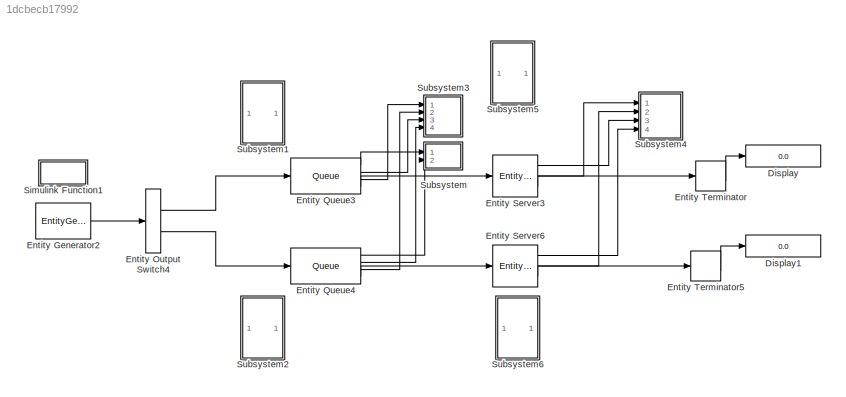
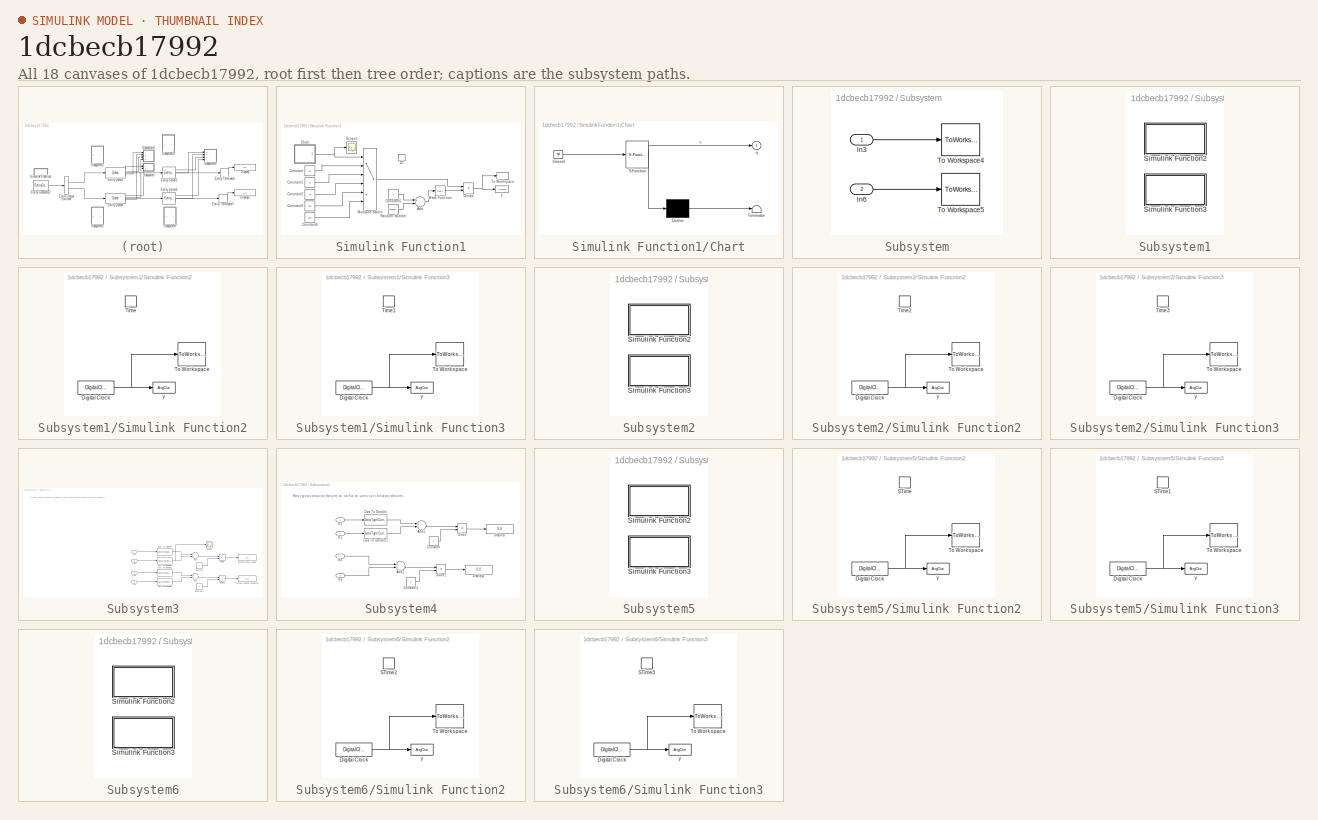
[diagram: thumbnail index - all 18 canvases of the model, root first then tree order]
MODEL slx_1dcbecb17992
KIND model
CONFIG AbsTol = auto
CONFIG EnableMultiTasking = off
CONFIG FixedStep = auto
CONFIG MaxStep = auto
CONFIG MinStep = auto
CONFIG RelTol = 1e-3
CONFIG SampleTimeConstraint = Unconstrained
CONFIG Solver = VariableStepAuto
CONFIG SolverName = VariableStepAuto
CONFIG StartTime = 0.0
CONFIG StopTime = 10.0
BLOCK [Display] Display
  Decimation = 1
  Format = bank
  Ports = [1]
BLOCK [Display] Display1
  Decimation = 1
  Format = bank
  Ports = [1]
BLOCK [EntityGenerator] Entity Generator2
  EntityType = Structured
  EntityTypeName = Entity
  IntergenerationTimeAction = dt=DT();
  OutputPortMap = o3
  OutputPortMessageModes = m
  Ports = [0, 1]
  TimeSource = MATLAB action
BLOCK [EntityOutputSwitch] Entity Output Switch4
  InputPortMap = u1
  InputPortMessageModes = m
  OutputPortMap = o0,o1
  OutputPortMessageModes = m,m
  Ports = [1, 2]
  SwitchAttributeName = Attribute1
  SwitchingCriterion = Equiprobable
BLOCK [Queue] Entity Queue3
  AverageQueueLength = on
  AverageWait = on
  Capacity = inf
  EntryAction = Time();
  ExitAction = Time1();
  InputPortMap = u0
  InputPortMessageModes = m
  NumberEntitiesInBlock = on
  OutputPortMap = o1,o2,o3,o5
  OutputPortMessageModes = n,n,n,m
  Ports = [1, 4]
BLOCK [Queue] Entity Queue4
  AverageQueueLength = on
  AverageWait = on
  Capacity = inf
  EntryAction = Time2();
  ExitAction = Time3();
  InputPortMap = u0
  InputPortMessageModes = m
  NumberEntitiesInBlock = on
  OutputPortMap = o1,o2,o3,o5
  OutputPortMessageModes = n,n,n,m
  Ports = [1, 4]
BLOCK [EntityServer] Entity Server3
  AverageWait = on
  Capacity = 1
  EntryAction = STime();
  ExitAction = STime1();
  InputPortMap = u2
  InputPortMessageModes = m
  OutputPortMap = o4,o5,o9
  OutputPortMessageModes = n,n,m
  Ports = [1, 3]
  ServiceTimeAction = persistent rngInit;\nif isempty(rngInit)\n    seed = 12345;\n    rng(seed);\n    rngInit = true;\nend\n\n% Pattern: Gaussian (normal) distribution\n% m: Mean, d: Standard deviation\nm = 3; d = 4.5;\ndt =120 + m + d * randn;
  ServiceTimeSource = MATLAB action
  Utilization = on
BLOCK [EntityServer] Entity Server6
  AverageWait = on
  Capacity = 1
  EntryAction = STime2();
  ExitAction = STime3();
  InputPortMap = u2
  InputPortMessageModes = m
  OutputPortMap = o4,o5,o9
  OutputPortMessageModes = n,n,m
  Ports = [1, 3]
  ServiceTimeAction = % Pattern: Gaussian (normal) distribution\n% m: Mean, d: Standard deviation\nm = 3; d = 4.5;\ndt =120 + m + d * randn;
  ServiceTimeSource = MATLAB action
  Utilization = on
BLOCK [EntityTerminator] Entity Terminator
  InputPortMap = u0
  InputPortMessageModes = m
  NumberEntitiesArrived = on
  OutputPortMap = o0
  Ports = [1, 1]
BLOCK [EntityTerminator] Entity Terminator5
  InputPortMap = u0
  InputPortMessageModes = m
  NumberEntitiesArrived = on
  OutputPortMap = o0
  Ports = [1, 1]
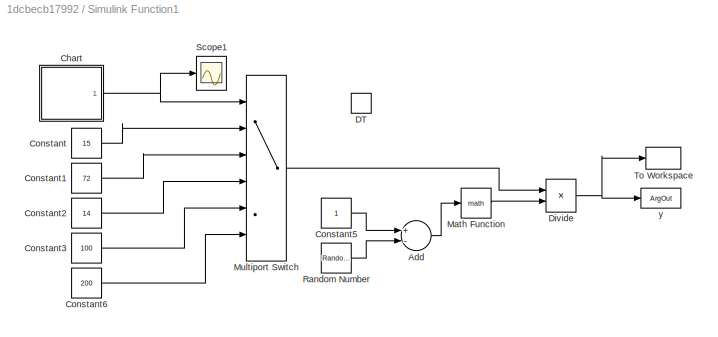
BLOCK [SubSystem] Simulink Function1
  Ports = [0, 0, 0, 1]
  RequestExecContextInheritance = off
  TreatAsAtomicUnit = on
BLOCK [Sum] Simulink Function1/Add
  InputSameDT = off
  Inputs = +-
  OutDataTypeStr = Inherit: Inherit via internal rule
  Ports = [2, 1]
  SaturateOnIntegerOverflow = off
BLOCK [SubSystem] Simulink Function1/Chart
  BlockKeywords = __PRM__SERIALIZED__DATA__:Stateflow Chart,Stateflow Diagram
  ErrorFcn = Stateflow.Translate.translate
  PermitHierarchicalResolution = ExplicitOnly
  Ports = [0, 1]
  RequestExecContextInheritance = off
  SFBlockType = Chart
  TreatAsAtomicUnit = on
BLOCK [Demux] Simulink Function1/Chart/ Demux 
  Outputs = 1
  Ports = [1, 1]
BLOCK [Ground] Simulink Function1/Chart/ Ground 
BLOCK [S-Function] Simulink Function1/Chart/ SFunction 
  EnableBusSupport = on
  FunctionName = sf_sfun
  PortCounts = [1 2]
  Ports = [1, 2]
  SFcnIsStateOwnerBlock = off
  SFunctionDeploymentMode = off
  Tag = Stateflow S-Function 3
BLOCK [Terminator] Simulink Function1/Chart/ Terminator 
BLOCK [Outport] Simulink Function1/Chart/q
  IconDisplay = Port number
BLOCK [Constant] Simulink Function1/Constant
  Value = 15
BLOCK [Constant] Simulink Function1/Constant1
  Value = 72
BLOCK [Constant] Simulink Function1/Constant2
  Value = 14
BLOCK [Constant] Simulink Function1/Constant3
  Value = 100
BLOCK [Constant] Simulink Function1/Constant5
BLOCK [Constant] Simulink Function1/Constant6
  Value = 200
BLOCK [TriggerPort] Simulink Function1/DT
  FunctionName = DT
  FunctionVisibility = scoped
  IsSimulinkFunction = on
  Ports = []
  StatesWhenEnabling = held
  TriggerType = function-call
  VariantControl = (inherit)
BLOCK [Product] Simulink Function1/Divide
  InputSameDT = off
  Inputs = **
  OutDataTypeStr = Inherit: Inherit via internal rule
  Ports = [2, 1]
  RndMeth = Floor
  SaturateOnIntegerOverflow = off
BLOCK [Math] Simulink Function1/Math Function
  Ports = [1, 1]
  SignedPower = off
BLOCK [MultiPortSwitch] Simulink Function1/Multiport Switch
  DataPortOrder = Zero-based contiguous
  InputSameDT = off
  Inputs = 5
  Ports = [6, 1]
  SaturateOnIntegerOverflow = off
  zeroidx = on
BLOCK [RandomNumber] Simulink Function1/Random Number
BLOCK [Scope] Simulink Function1/Scope1
  Floating = off
  NumInputPorts = 1
  Ports = [1]
  ScopeSpecificationString = Simulink.scopes.TimeScopeBlockCfg('CurrentConfiguration', extmgr.ConfigurationSet(extmgr.Configuration('Core','General UI',true),extmgr.Configuration('Core','Source UI',true),extmgr.Configuration('Sources','WiredSimulink',true,'DataLoggingVariableName','ScopeData1'),extmgr.Configuration('Visuals','Time Domain',true,'SerializedDisplays',{struct('MinYLimReal','-0.5','MaxYLimReal','4.5','YLabelReal',...<+1392ch>
BLOCK [ToWorkspace] Simulink Function1/To Workspace
  MaxDataPoints = inf
  Ports = [1]
  SampleTime = -1
  Save2DSignal = 2-D array (concatenate along first dimension)
  SaveFormat = Timeseries
  VariableName = DT
BLOCK [ArgOut] Simulink Function1/y
  ArgumentName = y
  DisableCoverage = on
BLOCK [SubSystem] Subsystem
  Ports = [2]
  RequestExecContextInheritance = off
BLOCK [Inport] Subsystem/In3
  IconDisplay = Port number
BLOCK [Inport] Subsystem/In6
  IconDisplay = Port number
  Port = 2
BLOCK [ToWorkspace] Subsystem/To Workspace4
  MaxDataPoints = inf
  Ports = [1]
  SampleTime = -1
  Save2DSignal = 2-D array (concatenate along first dimension)
  SaveFormat = Timeseries
  VariableName = N
BLOCK [ToWorkspace] Subsystem/To Workspace5
  MaxDataPoints = inf
  Ports = [1]
  SampleTime = -1
  Save2DSignal = 2-D array (concatenate along first dimension)
  SaveFormat = Timeseries
  VariableName = N1
BLOCK [SubSystem] Subsystem1
  Ports = []
  RequestExecContextInheritance = off
BLOCK [SubSystem] Subsystem1/Simulink Function2
  Ports = [0, 0, 0, 1]
  RequestExecContextInheritance = off
  TreatAsAtomicUnit = on
BLOCK [DigitalClock] Subsystem1/Simulink Function2/Digital Clock
  SampleTime = -1
BLOCK [TriggerPort] Subsystem1/Simulink Function2/Time
  FunctionName = Time
  IsSimulinkFunction = on
  Ports = []
  StatesWhenEnabling = held
  TriggerType = function-call
  VariantControl = (inherit)
BLOCK [ToWorkspace] Subsystem1/Simulink Function2/To Workspace
  MaxDataPoints = inf
  Ports = [1]
  SampleTime = -1
  Save2DSignal = 2-D array (concatenate along first dimension)
  VariableName = Time
BLOCK [ArgOut] Subsystem1/Simulink Function2/y
  ArgumentName = y
  DisableCoverage = on
BLOCK [SubSystem] Subsystem1/Simulink Function3
  Ports = [0, 0, 0, 1]
  RequestExecContextInheritance = off
  TreatAsAtomicUnit = on
BLOCK [DigitalClock] Subsystem1/Simulink Function3/Digital Clock
  SampleTime = -1
BLOCK [TriggerPort] Subsystem1/Simulink Function3/Time1
  FunctionName = Time1
  IsSimulinkFunction = on
  Ports = []
  StatesWhenEnabling = held
  TriggerType = function-call
  VariantControl = (inherit)
BLOCK [ToWorkspace] Subsystem1/Simulink Function3/To Workspace
  MaxDataPoints = inf
  Ports = [1]
  SampleTime = -1
  Save2DSignal = 2-D array (concatenate along first dimension)
  VariableName = Time1
BLOCK [ArgOut] Subsystem1/Simulink Function3/y
  ArgumentName = y
  DisableCoverage = on
BLOCK [SubSystem] Subsystem2
  Ports = []
  RequestExecContextInheritance = off
BLOCK [SubSystem] Subsystem2/Simulink Function2
  Ports = [0, 0, 0, 1]
  RequestExecContextInheritance = off
  TreatAsAtomicUnit = on
BLOCK [DigitalClock] Subsystem2/Simulink Function2/Digital Clock
  SampleTime = -1
BLOCK [TriggerPort] Subsystem2/Simulink Function2/Time2
  FunctionName = Time2
  IsSimulinkFunction = on
  Ports = []
  StatesWhenEnabling = held
  TriggerType = function-call
  VariantControl = (inherit)
BLOCK [ToWorkspace] Subsystem2/Simulink Function2/To Workspace
  MaxDataPoints = inf
  Ports = [1]
  SampleTime = -1
  Save2DSignal = 2-D array (concatenate along first dimension)
  VariableName = Time2
BLOCK [ArgOut] Subsystem2/Simulink Function2/y
  ArgumentName = y
  DisableCoverage = on
BLOCK [SubSystem] Subsystem2/Simulink Function3
  Ports = [0, 0, 0, 1]
  RequestExecContextInheritance = off
  TreatAsAtomicUnit = on
BLOCK [DigitalClock] Subsystem2/Simulink Function3/Digital Clock
  SampleTime = -1
BLOCK [TriggerPort] Subsystem2/Simulink Function3/Time3
  FunctionName = Time3
  IsSimulinkFunction = on
  Ports = []
  StatesWhenEnabling = held
  TriggerType = function-call
  VariantControl = (inherit)
BLOCK [ToWorkspace] Subsystem2/Simulink Function3/To Workspace
  MaxDataPoints = inf
  Ports = [1]
  SampleTime = -1
  Save2DSignal = 2-D array (concatenate along first dimension)
  VariableName = Time3
BLOCK [ArgOut] Subsystem2/Simulink Function3/y
  ArgumentName = y
  DisableCoverage = on
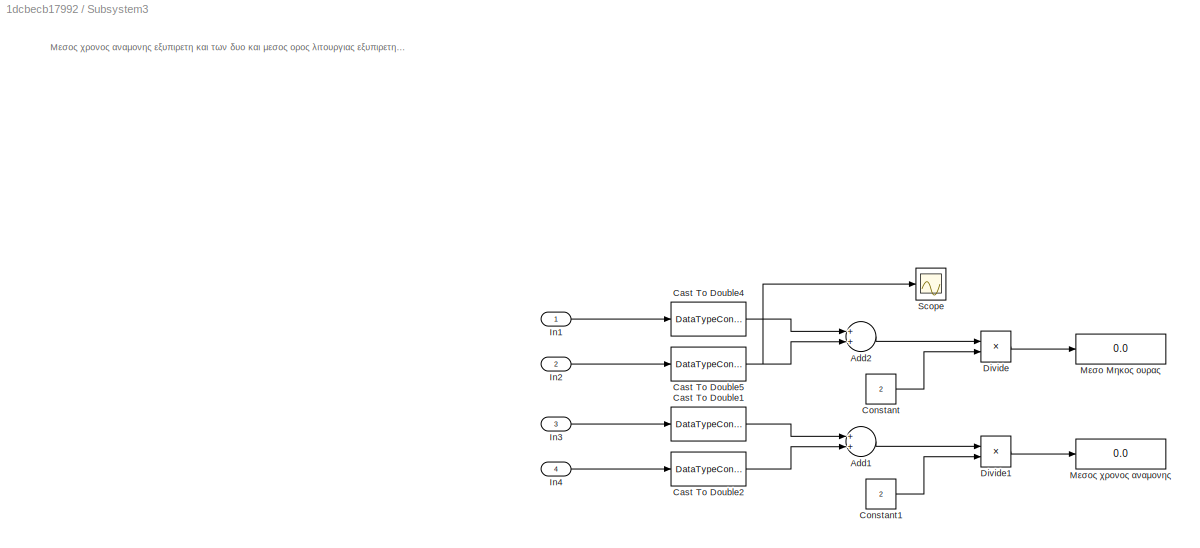
BLOCK [SubSystem] Subsystem3
  Ports = [4]
  RequestExecContextInheritance = off
BLOCK [Sum] Subsystem3/Add1
  InputSameDT = off
  OutDataTypeStr = Inherit: Inherit via internal rule
  Ports = [2, 1]
  SaturateOnIntegerOverflow = off
BLOCK [Sum] Subsystem3/Add2
  InputSameDT = off
  OutDataTypeStr = Inherit: Inherit via internal rule
  Ports = [2, 1]
  SaturateOnIntegerOverflow = off
BLOCK [DataTypeConversion] Subsystem3/Cast To Double1
  OutDataTypeStr = double
  RndMeth = Floor
  SaturateOnIntegerOverflow = off
BLOCK [DataTypeConversion] Subsystem3/Cast To Double2
  OutDataTypeStr = double
  RndMeth = Floor
  SaturateOnIntegerOverflow = off
BLOCK [DataTypeConversion] Subsystem3/Cast To Double4
  OutDataTypeStr = double
  RndMeth = Floor
  SaturateOnIntegerOverflow = off
BLOCK [DataTypeConversion] Subsystem3/Cast To Double5
  OutDataTypeStr = double
  RndMeth = Floor
  SaturateOnIntegerOverflow = off
BLOCK [Constant] Subsystem3/Constant
  Value = 2
BLOCK [Constant] Subsystem3/Constant1
  Value = 2
BLOCK [Product] Subsystem3/Divide
  InputSameDT = off
  Inputs = */
  OutDataTypeStr = Inherit: Inherit via internal rule
  Ports = [2, 1]
  RndMeth = Floor
  SaturateOnIntegerOverflow = off
BLOCK [Product] Subsystem3/Divide1
  InputSameDT = off
  Inputs = */
  OutDataTypeStr = Inherit: Inherit via internal rule
  Ports = [2, 1]
  RndMeth = Floor
  SaturateOnIntegerOverflow = off
BLOCK [Inport] Subsystem3/In1
  IconDisplay = Port number
BLOCK [Inport] Subsystem3/In2
  IconDisplay = Port number
  Port = 2
BLOCK [Inport] Subsystem3/In3
  IconDisplay = Port number
  Port = 3
BLOCK [Inport] Subsystem3/In4
  IconDisplay = Port number
  Port = 4
BLOCK [Scope] Subsystem3/Scope
  Floating = off
  NumInputPorts = 1
  Ports = [1]
  ScopeSpecificationString = Simulink.scopes.TimeScopeBlockCfg('CurrentConfiguration', extmgr.ConfigurationSet(extmgr.Configuration('Core','General UI',true),extmgr.Configuration('Core','Source UI',true),extmgr.Configuration('Sources','WiredSimulink',true,'DataLoggingVariableName','ScopeData1'),extmgr.Configuration('Visuals','Time Domain',true,'SerializedDisplays',{struct('MinYLimReal','-0.51107','MaxYLimReal','4.59964','YLab...<+1374ch>
BLOCK [Display] Subsystem3/Μεσο Μηκος ουρας
  Decimation = 1
  Ports = [1]
BLOCK [Display] Subsystem3/Μεσος χρονος αναμονης
  Decimation = 1
  Ports = [1]
BLOCK [SubSystem] Subsystem4
  Ports = [4]
  RequestExecContextInheritance = off
BLOCK [Sum] Subsystem4/Add1
  InputSameDT = off
  OutDataTypeStr = Inherit: Inherit via internal rule
  Ports = [2, 1]
  SaturateOnIntegerOverflow = off
BLOCK [Sum] Subsystem4/Add2
  InputSameDT = off
  OutDataTypeStr = Inherit: Inherit via internal rule
  Ports = [2, 1]
  SaturateOnIntegerOverflow = off
BLOCK [DataTypeConversion] Subsystem4/Cast To Double
  OutDataTypeStr = double
  RndMeth = Floor
  SaturateOnIntegerOverflow = off
BLOCK [DataTypeConversion] Subsystem4/Cast To Double1
  OutDataTypeStr = double
  RndMeth = Floor
  SaturateOnIntegerOverflow = off
BLOCK [Constant] Subsystem4/Constant
  Value = 2
BLOCK [Constant] Subsystem4/Constant1
  Value = 2
BLOCK [Display] Subsystem4/Display
  Decimation = 1
  Ports = [1]
BLOCK [Display] Subsystem4/Display1
  Decimation = 1
  Ports = [1]
BLOCK [Product] Subsystem4/Divide
  InputSameDT = off
  Inputs = */
  OutDataTypeStr = Inherit: Inherit via internal rule
  Ports = [2, 1]
  RndMeth = Floor
  SaturateOnIntegerOverflow = off
BLOCK [Product] Subsystem4/Divide1
  InputSameDT = off
  Inputs = */
  OutDataTypeStr = Inherit: Inherit via internal rule
  Ports = [2, 1]
  RndMeth = Floor
  SaturateOnIntegerOverflow = off
BLOCK [Inport] Subsystem4/In1
  IconDisplay = Port number
BLOCK [Inport] Subsystem4/In2
  IconDisplay = Port number
  Port = 2
BLOCK [Inport] Subsystem4/In3
  IconDisplay = Port number
  Port = 3
BLOCK [Inport] Subsystem4/In6
  IconDisplay = Port number
  Port = 4
BLOCK [SubSystem] Subsystem5
  Ports = []
  RequestExecContextInheritance = off
BLOCK [SubSystem] Subsystem5/Simulink Function2
  Ports = [0, 0, 0, 1]
  RequestExecContextInheritance = off
  TreatAsAtomicUnit = on
BLOCK [DigitalClock] Subsystem5/Simulink Function2/Digital Clock
  SampleTime = -1
BLOCK [TriggerPort] Subsystem5/Simulink Function2/STime
  FunctionName = STime
  IsSimulinkFunction = on
  Ports = []
  StatesWhenEnabling = held
  TriggerType = function-call
  VariantControl = (inherit)
BLOCK [ToWorkspace] Subsystem5/Simulink Function2/To Workspace
  MaxDataPoints = inf
  Ports = [1]
  SampleTime = -1
  Save2DSignal = 2-D array (concatenate along first dimension)
  VariableName = STime
BLOCK [ArgOut] Subsystem5/Simulink Function2/y
  ArgumentName = y
  DisableCoverage = on
BLOCK [SubSystem] Subsystem5/Simulink Function3
  Ports = [0, 0, 0, 1]
  RequestExecContextInheritance = off
  TreatAsAtomicUnit = on
BLOCK [DigitalClock] Subsystem5/Simulink Function3/Digital Clock
  SampleTime = -1
BLOCK [TriggerPort] Subsystem5/Simulink Function3/STime1
  FunctionName = STime1
  IsSimulinkFunction = on
  Ports = []
  StatesWhenEnabling = held
  TriggerType = function-call
  VariantControl = (inherit)
BLOCK [ToWorkspace] Subsystem5/Simulink Function3/To Workspace
  MaxDataPoints = inf
  Ports = [1]
  SampleTime = -1
  Save2DSignal = 2-D array (concatenate along first dimension)
  VariableName = STime1
BLOCK [ArgOut] Subsystem5/Simulink Function3/y
  ArgumentName = y
  DisableCoverage = on
BLOCK [SubSystem] Subsystem6
  Ports = []
  RequestExecContextInheritance = off
BLOCK [SubSystem] Subsystem6/Simulink Function2
  Ports = [0, 0, 0, 1]
  RequestExecContextInheritance = off
  TreatAsAtomicUnit = on
BLOCK [DigitalClock] Subsystem6/Simulink Function2/Digital Clock
  SampleTime = -1
BLOCK [TriggerPort] Subsystem6/Simulink Function2/STime2
  FunctionName = STime2
  IsSimulinkFunction = on
  Ports = []
  StatesWhenEnabling = held
  TriggerType = function-call
  VariantControl = (inherit)
BLOCK [ToWorkspace] Subsystem6/Simulink Function2/To Workspace
  MaxDataPoints = inf
  Ports = [1]
  SampleTime = -1
  Save2DSignal = 2-D array (concatenate along first dimension)
  VariableName = STime2
BLOCK [ArgOut] Subsystem6/Simulink Function2/y
  ArgumentName = y
  DisableCoverage = on
BLOCK [SubSystem] Subsystem6/Simulink Function3
  Ports = [0, 0, 0, 1]
  RequestExecContextInheritance = off
  TreatAsAtomicUnit = on
BLOCK [DigitalClock] Subsystem6/Simulink Function3/Digital Clock
  SampleTime = -1
BLOCK [TriggerPort] Subsystem6/Simulink Function3/STime3
  FunctionName = STime3
  IsSimulinkFunction = on
  Ports = []
  StatesWhenEnabling = held
  TriggerType = function-call
  VariantControl = (inherit)
BLOCK [ToWorkspace] Subsystem6/Simulink Function3/To Workspace
  MaxDataPoints = inf
  Ports = [1]
  SampleTime = -1
  Save2DSignal = 2-D array (concatenate along first dimension)
  VariableName = STime3
BLOCK [ArgOut] Subsystem6/Simulink Function3/y
  ArgumentName = y
  DisableCoverage = on
ANNOTATION Subsystem3: Μεσος χρονος αναμονης εξυπιρετη και των δυο και μεσος ορος λιτουργιας εξυπιρετη και των δυο
ANNOTATION Subsystem4: Μεσος χρονος αναμονης εξυπιρετη και των δυο και μεσος ορος λιτουργιας εξυπιρετη και των δυο
LINE Entity Generator2:1 -> Entity Output Switch4:1
LINE Entity Output Switch4:1 -> Entity Queue3:1
LINE Entity Output Switch4:2 -> Entity Queue4:1
LINE Entity Queue3:1 -> Subsystem:1
LINE Entity Queue3:2 -> Subsystem3:3
LINE Entity Queue3:3 -> Subsystem3:1
LINE Entity Queue3:4 -> Entity Server3:1
LINE Entity Queue4:1 -> Subsystem:2
LINE Entity Queue4:2 -> Subsystem3:4
LINE Entity Queue4:3 -> Subsystem3:2
LINE Entity Queue4:4 -> Entity Server6:1
LINE Entity Server3:1 -> Subsystem4:3
LINE Entity Server3:2 -> Subsystem4:1
LINE Entity Server3:3 -> Entity Terminator:1
LINE Entity Server6:1 -> Subsystem4:4
LINE Entity Server6:2 -> Subsystem4:2
LINE Entity Server6:3 -> Entity Terminator5:1
LINE Entity Terminator5:1 -> Display1:1
LINE Entity Terminator:1 -> Display:1
LINE Simulink Function1/Add:1 -> Simulink Function1/Math Function:1
NET Simulink Function1/Chart:1 -> Simulink Function1/Multiport Switch:1, Simulink Function1/Scope1:1
LINE Simulink Function1/Constant1:1 -> Simulink Function1/Multiport Switch:3
LINE Simulink Function1/Constant2:1 -> Simulink Function1/Multiport Switch:4
LINE Simulink Function1/Constant3:1 -> Simulink Function1/Multiport Switch:5
LINE Simulink Function1/Constant5:1 -> Simulink Function1/Add:1
LINE Simulink Function1/Constant6:1 -> Simulink Function1/Multiport Switch:6
LINE Simulink Function1/Constant:1 -> Simulink Function1/Multiport Switch:2
NET Simulink Function1/Divide:1 -> Simulink Function1/To Workspace:1, Simulink Function1/y:1
LINE Simulink Function1/Math Function:1 -> Simulink Function1/Divide:2
LINE Simulink Function1/Multiport Switch:1 -> Simulink Function1/Divide:1
LINE Simulink Function1/Random Number:1 -> Simulink Function1/Add:2
LINE Subsystem/In3:1 -> Subsystem/To Workspace4:1
LINE Subsystem/In6:1 -> Subsystem/To Workspace5:1
NET Subsystem1/Simulink Function2/Digital Clock:1 -> Subsystem1/Simulink Function2/To Workspace:1, Subsystem1/Simulink Function2/y:1
NET Subsystem1/Simulink Function3/Digital Clock:1 -> Subsystem1/Simulink Function3/To Workspace:1, Subsystem1/Simulink Function3/y:1
NET Subsystem2/Simulink Function2/Digital Clock:1 -> Subsystem2/Simulink Function2/To Workspace:1, Subsystem2/Simulink Function2/y:1
NET Subsystem2/Simulink Function3/Digital Clock:1 -> Subsystem2/Simulink Function3/To Workspace:1, Subsystem2/Simulink Function3/y:1
LINE Subsystem3/Add1:1 -> Subsystem3/Divide1:1
LINE Subsystem3/Add2:1 -> Subsystem3/Divide:1
LINE Subsystem3/Cast To Double1:1 -> Subsystem3/Add1:1
LINE Subsystem3/Cast To Double2:1 -> Subsystem3/Add1:2
LINE Subsystem3/Cast To Double4:1 -> Subsystem3/Add2:1
NET Subsystem3/Cast To Double5:1 -> Subsystem3/Add2:2, Subsystem3/Scope:1
LINE Subsystem3/Constant1:1 -> Subsystem3/Divide1:2
LINE Subsystem3/Constant:1 -> Subsystem3/Divide:2
LINE Subsystem3/Divide1:1 -> Subsystem3/Μεσος χρονος αναμονης:1
LINE Subsystem3/Divide:1 -> Subsystem3/Μεσο Μηκος ουρας:1
LINE Subsystem3/In1:1 -> Subsystem3/Cast To Double4:1
LINE Subsystem3/In2:1 -> Subsystem3/Cast To Double5:1
LINE Subsystem3/In3:1 -> Subsystem3/Cast To Double1:1
LINE Subsystem3/In4:1 -> Subsystem3/Cast To Double2:1
LINE Subsystem4/Add1:1 -> Subsystem4/Divide:1
LINE Subsystem4/Add2:1 -> Subsystem4/Divide1:1
LINE Subsystem4/Cast To Double1:1 -> Subsystem4/Add1:2
LINE Subsystem4/Cast To Double:1 -> Subsystem4/Add1:1
LINE Subsystem4/Constant1:1 -> Subsystem4/Divide1:2
LINE Subsystem4/Constant:1 -> Subsystem4/Divide:2
LINE Subsystem4/Divide1:1 -> Subsystem4/Display1:1
LINE Subsystem4/Divide:1 -> Subsystem4/Display:1
LINE Subsystem4/In1:1 -> Subsystem4/Cast To Double:1
LINE Subsystem4/In2:1 -> Subsystem4/Cast To Double1:1
LINE Subsystem4/In3:1 -> Subsystem4/Add2:1
LINE Subsystem4/In6:1 -> Subsystem4/Add2:2
NET Subsystem5/Simulink Function2/Digital Clock:1 -> Subsystem5/Simulink Function2/To Workspace:1, Subsystem5/Simulink Function2/y:1
NET Subsystem5/Simulink Function3/Digital Clock:1 -> Subsystem5/Simulink Function3/To Workspace:1, Subsystem5/Simulink Function3/y:1
NET Subsystem6/Simulink Function2/Digital Clock:1 -> Subsystem6/Simulink Function2/To Workspace:1, Subsystem6/Simulink Function2/y:1
NET Subsystem6/Simulink Function3/Digital Clock:1 -> Subsystem6/Simulink Function3/To Workspace:1, Subsystem6/Simulink Function3/y:1
note: NET lines group one-source signal fan-out (src -> all destinations, sorted); 1:1 wires keep LINE
CHART Simulink Function1/Chart states=5 transitions=6
  STATE_LABEL 'wait_to_off1\nentry:q=4;'
  STATE_LABEL 'pump_off\nentry:q=0;'
  STATE_LABEL 'wait_to_off\nentry:q=3;'
  STATE_LABEL 'wait_to_on\nentry:q=1;'
  STATE_LABEL 'pump_on\nentry:q=2;'
